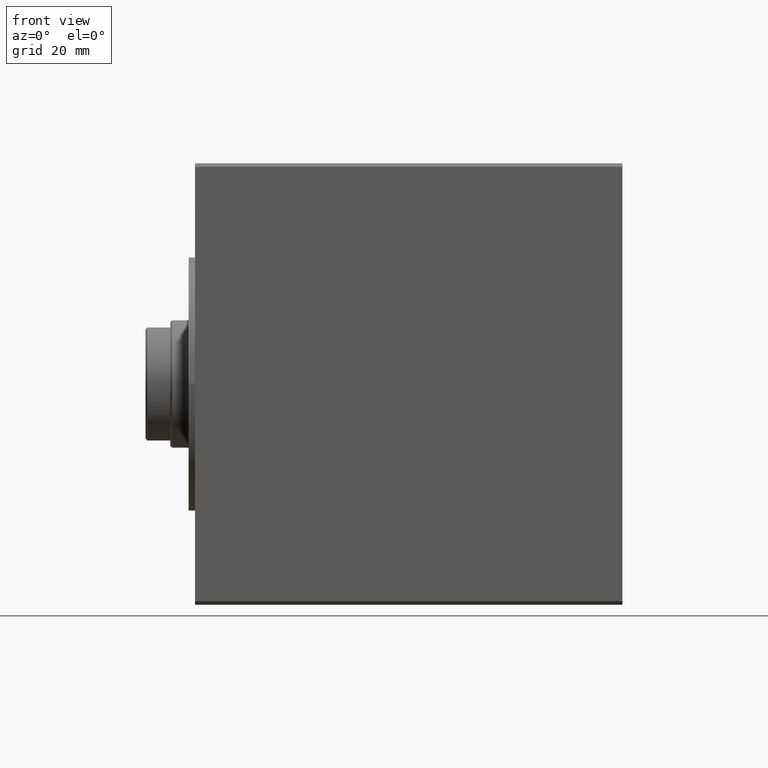
[diagram: clean part render]
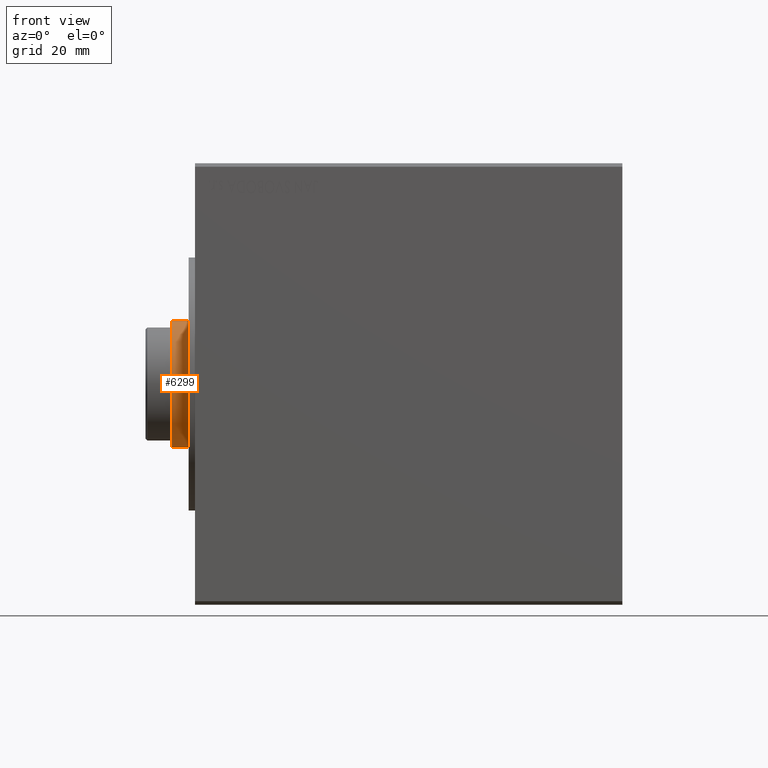
[diagram: same view with one face highlighted and labeled with its STEP entity id]
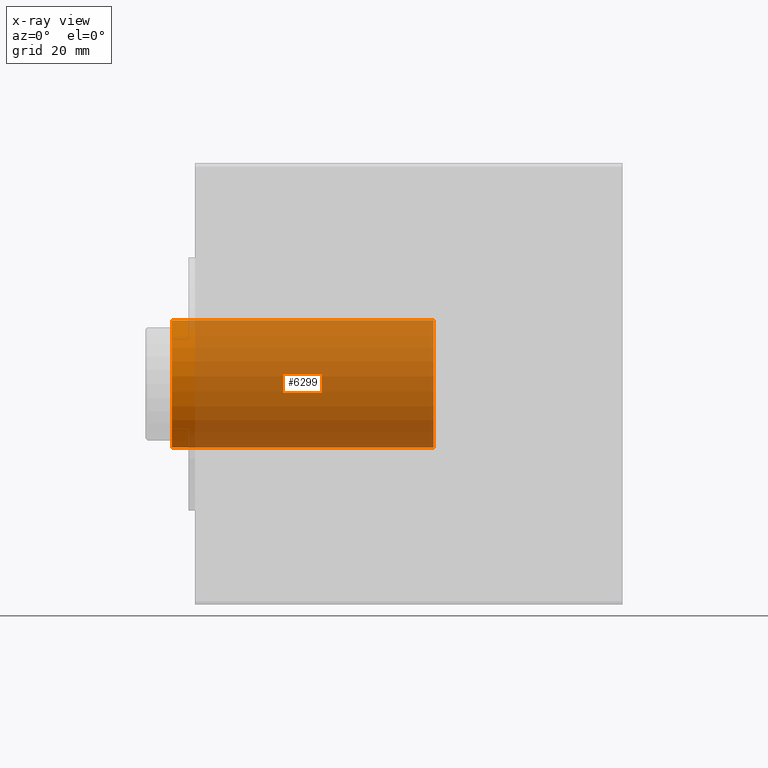
[diagram: x-ray of the same camera — body ghosted, the highlighted face saturated]
A machine part, front view. The second image highlights one B-rep face of the part: STEP entity #6299.
The next image is the same camera in x-ray: the body ghosted, the highlighted face saturated — about 92% of this face is hidden behind the body in this view.
In plain terms, the highlighted cylindrical surface (partial cylindrical patch) has radius 18 mm, axis along (1, -0, -0).
Its self-contained STEP definition (entity closure, byte-faithful):
#2645 = VERTEX_POINT ( 'NONE', #29662 ) ;
#3432 = FACE_OUTER_BOUND ( 'NONE', #38420, .T. ) ;
#3933 = LINE ( 'NONE', #13749, #31332 ) ;
#3953 = CARTESIAN_POINT ( 'NONE',  ( 0.000000000000000000, 0.000000000000000000, 108.9999999999999574 ) ) ;
#5550 = CIRCLE ( 'NONE', #28288, 18.00000000000000000 ) ;
#6299 = ADVANCED_FACE ( 'NONE', ( #3432 ), #40363, .T. ) ;
#6447 = DIRECTION ( 'NONE',  ( 0.000000000000000000, 0.000000000000000000, 1.000000000000000000 ) ) ;
#8064 = EDGE_CURVE ( 'NONE', #34376, #10759, #5550, .T. ) ;
#9134 = VECTOR ( 'NONE', #43255, 1000.000000000000000 ) ;
#9976 = DIRECTION ( 'NONE',  ( 1.000000000000000000, 0.000000000000000000, 0.000000000000000000 ) ) ;
#10759 = VERTEX_POINT ( 'NONE', #20717 ) ;
#13749 = CARTESIAN_POINT ( 'NONE',  ( 18.00000000000000000, 2.204364238465235428E-15, 109.5000000000000000 ) ) ;
#14202 = EDGE_CURVE ( 'NONE', #10759, #2645, #39470, .T. ) ;
#16591 = CARTESIAN_POINT ( 'NONE',  ( 0.000000000000000000, 0.000000000000000000, 109.5000000000000000 ) ) ;
#16936 = CARTESIAN_POINT ( 'NONE',  ( 18.00000000000000000, 2.204364238465235428E-15, 35.00000000000000000 ) ) ;
#17317 = DIRECTION ( 'NONE',  ( -0.000000000000000000, -0.000000000000000000, -1.000000000000000000 ) ) ;
#17841 = CARTESIAN_POINT ( 'NONE',  ( 18.00000000000000000, 2.204364238465235428E-15, 108.9999999999999574 ) ) ;
#19233 = ORIENTED_EDGE ( 'NONE', *, *, #14202, .T. ) ;
#19410 = AXIS2_PLACEMENT_3D ( 'NONE', #22926, #6447, #37359 ) ;
#20717 = CARTESIAN_POINT ( 'NONE',  ( -18.00000000000000000, 0.000000000000000000, 108.9999999999999574 ) ) ;
#22926 = CARTESIAN_POINT ( 'NONE',  ( 0.000000000000000000, 0.000000000000000000, 35.00000000000000000 ) ) ;
#26112 = ORIENTED_EDGE ( 'NONE', *, *, #29905, .F. ) ;
#26685 = ORIENTED_EDGE ( 'NONE', *, *, #38601, .T. ) ;
#26886 = DIRECTION ( 'NONE',  ( 0.000000000000000000, 0.000000000000000000, -1.000000000000000000 ) ) ;
#27719 = VERTEX_POINT ( 'NONE', #16936 ) ;
#28288 = AXIS2_PLACEMENT_3D ( 'NONE', #3953, #26886, #9976 ) ;
#29662 = CARTESIAN_POINT ( 'NONE',  ( -18.00000000000000000, 0.000000000000000000, 35.00000000000000000 ) ) ;
#29672 = AXIS2_PLACEMENT_3D ( 'NONE', #16591, #29909, #43704 ) ;
#29675 = CARTESIAN_POINT ( 'NONE',  ( -18.00000000000000000, 0.000000000000000000, 109.5000000000000000 ) ) ;
#29905 = EDGE_CURVE ( 'NONE', #34376, #27719, #3933, .T. ) ;
#29909 = DIRECTION ( 'NONE',  ( -0.000000000000000000, -0.000000000000000000, -1.000000000000000000 ) ) ;
#31332 = VECTOR ( 'NONE', #17317, 1000.000000000000000 ) ;
#34376 = VERTEX_POINT ( 'NONE', #17841 ) ;
#35302 = ORIENTED_EDGE ( 'NONE', *, *, #8064, .T. ) ;
#37359 = DIRECTION ( 'NONE',  ( 1.000000000000000000, 0.000000000000000000, 0.000000000000000000 ) ) ;
#38420 = EDGE_LOOP ( 'NONE', ( #26112, #35302, #19233, #26685 ) ) ;
#38601 = EDGE_CURVE ( 'NONE', #2645, #27719, #40704, .T. ) ;
#39470 = LINE ( 'NONE', #29675, #9134 ) ;
#40363 = CYLINDRICAL_SURFACE ( 'NONE', #29672, 18.00000000000000000 ) ;
#40704 = CIRCLE ( 'NONE', #19410, 18.00000000000000000 ) ;
#43255 = DIRECTION ( 'NONE',  ( -0.000000000000000000, -0.000000000000000000, -1.000000000000000000 ) ) ;
#43704 = DIRECTION ( 'NONE',  ( -1.000000000000000000, 0.000000000000000000, 0.000000000000000000 ) ) ;